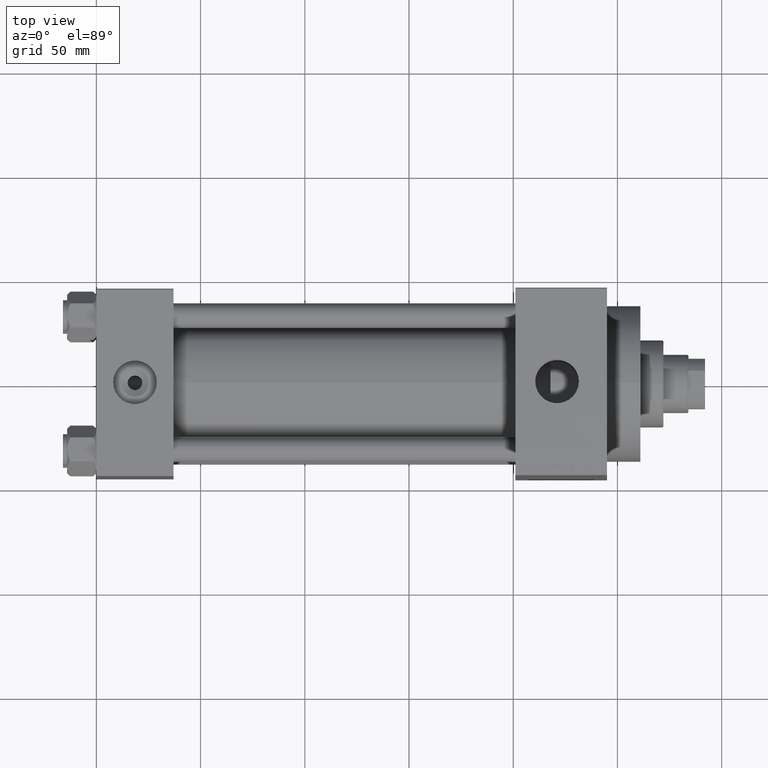
[diagram: clean part render]
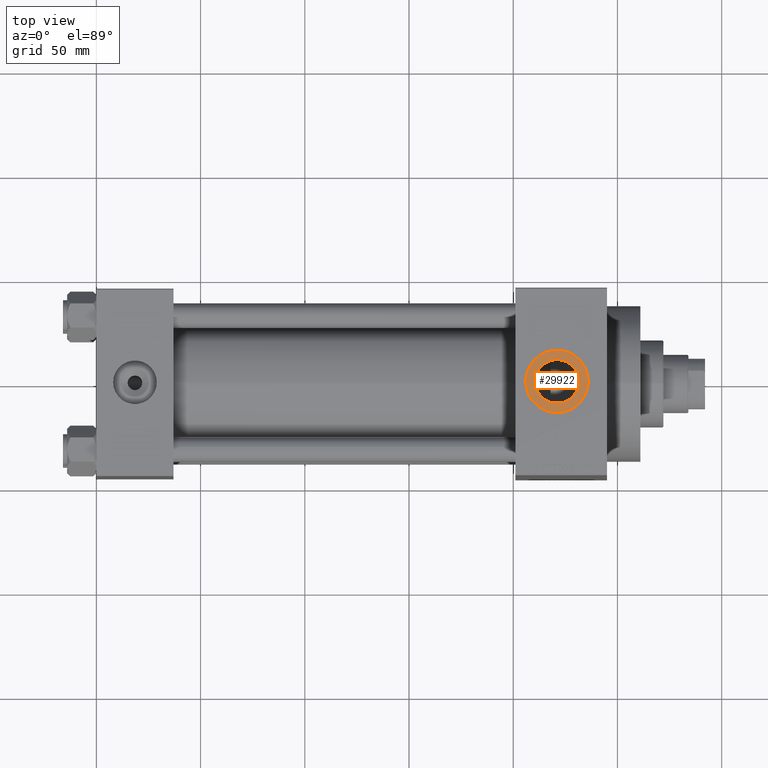
[diagram: same view with one face highlighted and labeled with its STEP entity id]
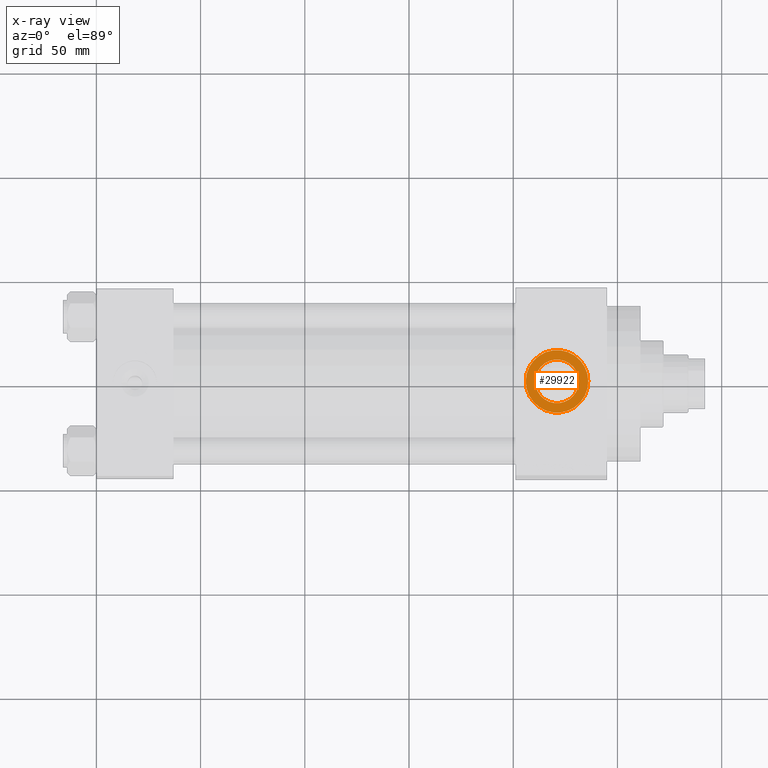
[diagram: x-ray of the same camera — body ghosted, the highlighted face saturated]
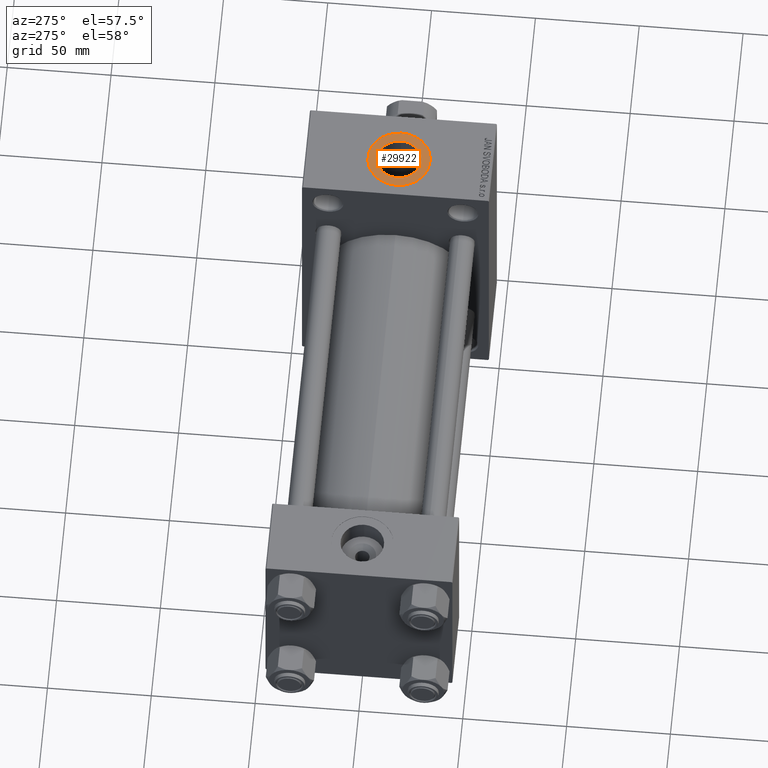
[diagram: same view with one face highlighted and labeled with its STEP entity id]
A machine part, top view. The second image highlights one B-rep face of the part: STEP entity #29922.
The next image is the same camera in x-ray: the body ghosted, the highlighted face saturated — about 0% of this face is hidden behind the body in this view.
A second angle (auxiliary view) of the same face is appended — the face is thin or edge-on in the first view.
In plain terms, the highlighted planar face has unit normal (0, 0, 1).
Its self-contained STEP definition (entity closure, byte-faithful):
#1507 = FACE_OUTER_BOUND ( 'NONE', #33246, .T. ) ;
#2455 = ORIENTED_EDGE ( 'NONE', *, *, #13518, .T. ) ;
#2661 = DIRECTION ( 'NONE',  ( 1.000000000000000000, 0.000000000000000000, 0.000000000000000000 ) ) ;
#3163 = DIRECTION ( 'NONE',  ( 1.000000000000000000, 0.000000000000000000, 0.000000000000000000 ) ) ;
#4060 = DIRECTION ( 'NONE',  ( 0.000000000000000000, 0.000000000000000000, 1.000000000000000000 ) ) ;
#4426 = VERTEX_POINT ( 'NONE', #17083 ) ;
#4538 = ORIENTED_EDGE ( 'NONE', *, *, #10630, .T. ) ;
#4640 = DIRECTION ( 'NONE',  ( 1.000000000000000000, 0.000000000000000000, -0.000000000000000000 ) ) ;
#6234 = EDGE_LOOP ( 'NONE', ( #38202, #4538 ) ) ;
#7589 = AXIS2_PLACEMENT_3D ( 'NONE', #11259, #4060, #18683 ) ;
#10556 = CARTESIAN_POINT ( 'NONE',  ( 236.0000000000000000, -1.094803260394251466E-14, 70.79999999999996874 ) ) ;
#10630 = EDGE_CURVE ( 'NONE', #4426, #25165, #19758, .T. ) ;
#11259 = CARTESIAN_POINT ( 'NONE',  ( 220.9999999999999716, -1.094803260394251466E-14, 70.79999999999996874 ) ) ;
#13013 = CIRCLE ( 'NONE', #45191, 15.00000000000001421 ) ;
#13518 = EDGE_CURVE ( 'NONE', #44412, #17419, #37431, .T. ) ;
#16125 = CARTESIAN_POINT ( 'NONE',  ( 220.9999999999999716, -1.094803260394251466E-14, 70.79999999999996874 ) ) ;
#16684 = CARTESIAN_POINT ( 'NONE',  ( 210.5199999999999818, -1.094803260394251466E-14, 70.79999999999996874 ) ) ;
#16780 = EDGE_CURVE ( 'NONE', #17419, #44412, #13013, .T. ) ;
#17083 = CARTESIAN_POINT ( 'NONE',  ( 231.4799999999999613, -9.664602758436089169E-15, 70.79999999999996874 ) ) ;
#17419 = VERTEX_POINT ( 'NONE', #10556 ) ;
#18683 = DIRECTION ( 'NONE',  ( 1.000000000000000000, 0.000000000000000000, 0.000000000000000000 ) ) ;
#19570 = DIRECTION ( 'NONE',  ( 0.000000000000000000, 0.000000000000000000, 1.000000000000000000 ) ) ;
#19758 = CIRCLE ( 'NONE', #33527, 10.47999999999998977 ) ;
#20969 = ORIENTED_EDGE ( 'NONE', *, *, #16780, .T. ) ;
#21621 = DIRECTION ( 'NONE',  ( -0.000000000000000000, -0.000000000000000000, -1.000000000000000000 ) ) ;
#22628 = PLANE ( 'NONE',  #31486 ) ;
#25165 = VERTEX_POINT ( 'NONE', #16684 ) ;
#29922 = ADVANCED_FACE ( 'NONE', ( #44683, #1507 ), #22628, .T. ) ;
#31486 = AXIS2_PLACEMENT_3D ( 'NONE', #16125, #41548, #4640 ) ;
#33246 = EDGE_LOOP ( 'NONE', ( #20969, #2455 ) ) ;
#33527 = AXIS2_PLACEMENT_3D ( 'NONE', #39605, #21621, #3163 ) ;
#34677 = DIRECTION ( 'NONE',  ( 1.000000000000000000, 0.000000000000000000, 0.000000000000000000 ) ) ;
#37431 = CIRCLE ( 'NONE', #7589, 15.00000000000001421 ) ;
#38202 = ORIENTED_EDGE ( 'NONE', *, *, #46177, .T. ) ;
#39276 = CARTESIAN_POINT ( 'NONE',  ( 205.9999999999999716, -9.111062405221479547E-15, 70.79999999999996874 ) ) ;
#39346 = DIRECTION ( 'NONE',  ( -0.000000000000000000, -0.000000000000000000, -1.000000000000000000 ) ) ;
#39605 = CARTESIAN_POINT ( 'NONE',  ( 220.9999999999999716, -1.094803260394251466E-14, 70.79999999999996874 ) ) ;
#41548 = DIRECTION ( 'NONE',  ( 0.000000000000000000, 0.000000000000000000, 1.000000000000000000 ) ) ;
#41622 = CARTESIAN_POINT ( 'NONE',  ( 220.9999999999999716, -1.094803260394251466E-14, 70.79999999999996874 ) ) ;
#41840 = CIRCLE ( 'NONE', #45673, 10.47999999999998977 ) ;
#42939 = CARTESIAN_POINT ( 'NONE',  ( 220.9999999999999716, -1.094803260394251466E-14, 70.79999999999996874 ) ) ;
#44412 = VERTEX_POINT ( 'NONE', #39276 ) ;
#44683 = FACE_BOUND ( 'NONE', #6234, .T. ) ;
#45191 = AXIS2_PLACEMENT_3D ( 'NONE', #41622, #19570, #34677 ) ;
#45673 = AXIS2_PLACEMENT_3D ( 'NONE', #42939, #39346, #2661 ) ;
#46177 = EDGE_CURVE ( 'NONE', #25165, #4426, #41840, .T. ) ;